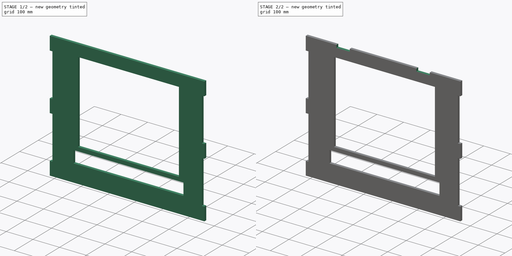
[diagram: build sequence overview — one tinted view per stage of 2, left to right]
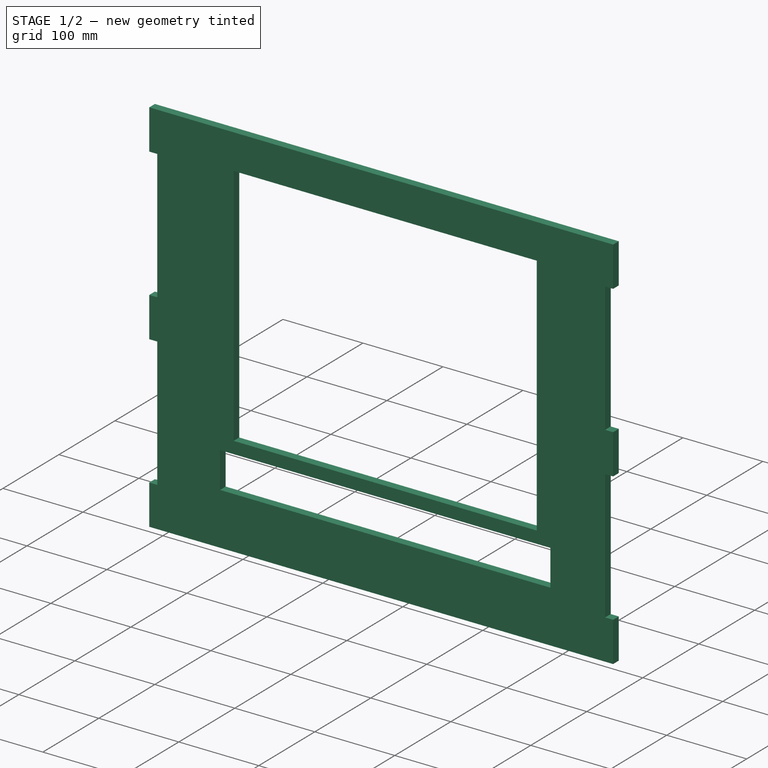
[diagram: stage 1 of 2 — iso view after this stage's code; geometry added in this stage tinted green]
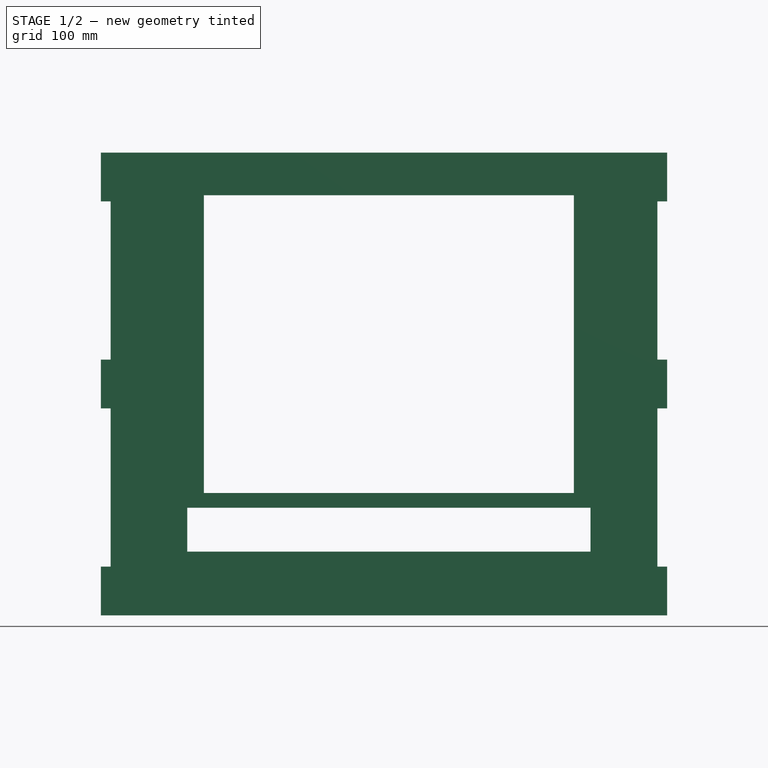
[diagram: stage 1 of 2 — front view after this stage's code; geometry added in this stage tinted green]
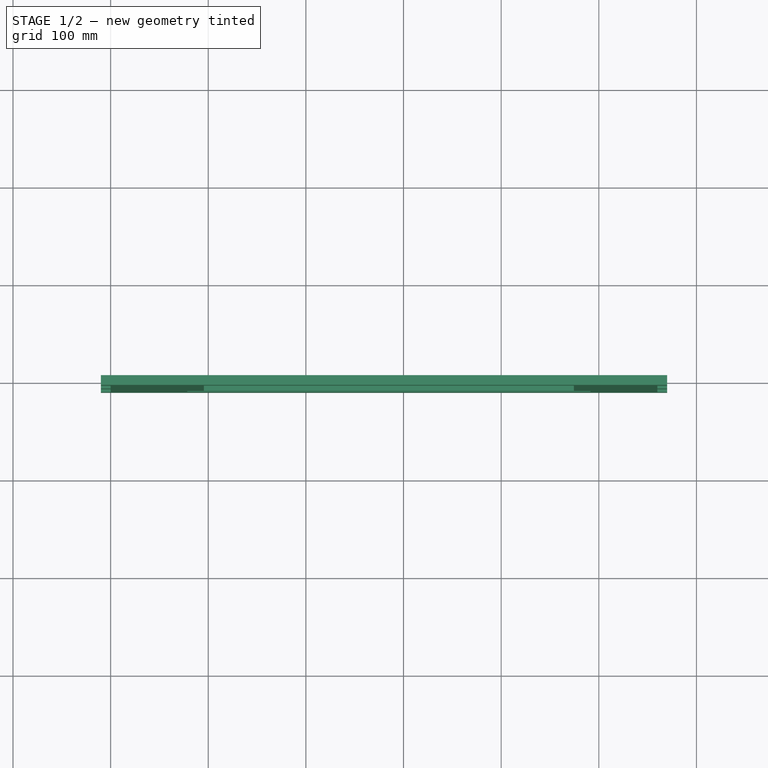
[diagram: stage 1 of 2 — top view after this stage's code; geometry added in this stage tinted green]
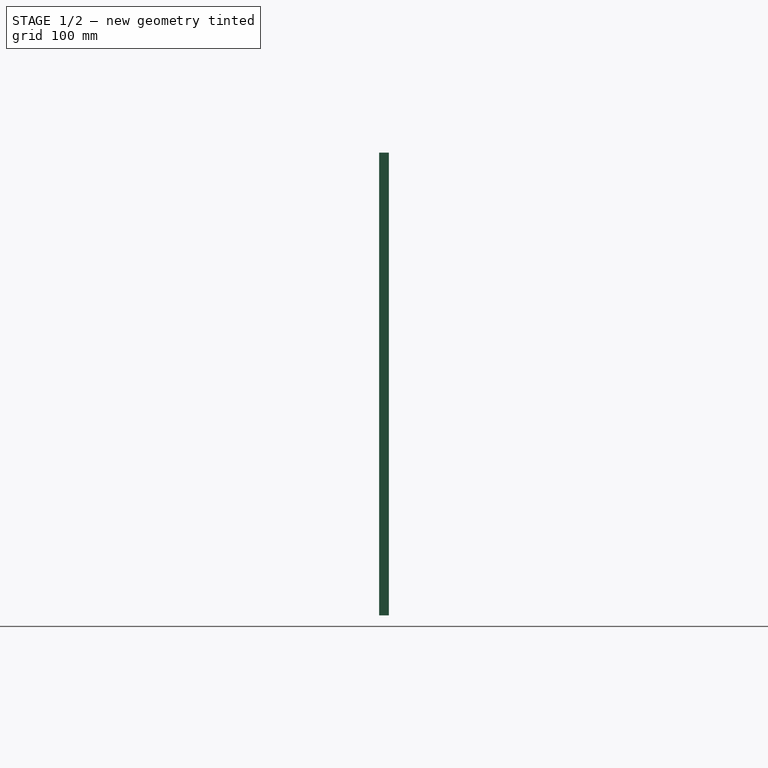
[diagram: stage 1 of 2 — right view after this stage's code; geometry added in this stage tinted green]
FCSTD DOCUMENT  (FreeCAD 0.16R)
Label: pannea_ecran
License: All rights reserved
LicenseURL: http://en.wikipedia.org/wiki/All_rights_reserved
objects: Sketcher::SketchObject×3, PartDesign::Pocket×2, PartDesign::Pad×1
note: 9 computed .brp shape members not serialized (recipe doc carries the construction recipe); baked Part::Feature solids carry a one-line shape summary decoded from their .brp

FEATURE [Sketcher::SketchObject] Sketch
  Placement = pos=(0,0,0) rot=(1,0,0;1.5708rad)
  sketch-geometry (24):
    g0: LineSegment StartX=0 StartY=0 StartZ=0 EndX=560 EndY=0 EndZ=0
    g1: LineSegment StartX=560 StartY=474 StartZ=0 EndX=0 EndY=474 EndZ=0
    g2: LineSegment StartX=560 StartY=474 StartZ=0 EndX=570 EndY=474 EndZ=0
    g3: LineSegment StartX=570 StartY=474 StartZ=0 EndX=570 EndY=424 EndZ=0
    g4: LineSegment StartX=570 StartY=424 StartZ=0 EndX=560 EndY=424 EndZ=0
    g5: LineSegment StartX=560 StartY=0 StartZ=0 EndX=570 EndY=0 EndZ=0
    g6: LineSegment StartX=570 StartY=0 StartZ=0 EndX=570 EndY=50 EndZ=0
    g7: LineSegment StartX=570 StartY=50 StartZ=0 EndX=560 EndY=50 EndZ=0
    g8: LineSegment StartX=0 StartY=0 StartZ=0 EndX=-10 EndY=0 EndZ=0
    g9: LineSegment StartX=-10 StartY=0 StartZ=0 EndX=-10 EndY=50 EndZ=0
    g10: LineSegment StartX=-10 StartY=50 StartZ=0 EndX=0 EndY=50 EndZ=0
    g11: LineSegment StartX=0 StartY=474 StartZ=0 EndX=-10 EndY=474 EndZ=0
    g12: LineSegment StartX=-10 StartY=474 StartZ=0 EndX=-10 EndY=424 EndZ=0
    g13: LineSegment StartX=-10 StartY=424 StartZ=0 EndX=0 EndY=424 EndZ=0
    g14: LineSegment StartX=-10 StartY=262 StartZ=0 EndX=0 EndY=262 EndZ=0
    g15: LineSegment StartX=0 StartY=212 StartZ=0 EndX=-10 EndY=212 EndZ=0
    g16: LineSegment StartX=-10 StartY=212 StartZ=0 EndX=-10 EndY=262 EndZ=0
    g17: LineSegment StartX=560 StartY=262 StartZ=0 EndX=570 EndY=262 EndZ=0
    g18: LineSegment StartX=570 StartY=262 StartZ=0 EndX=570 EndY=212 EndZ=0
    g19: LineSegment StartX=570 StartY=212 StartZ=0 EndX=560 EndY=212 EndZ=0
    g20: LineSegment StartX=0 StartY=424 StartZ=0 EndX=0 EndY=262 EndZ=0
    g21: LineSegment StartX=0 StartY=212 StartZ=0 EndX=0 EndY=50 EndZ=0
    g22: LineSegment StartX=560 StartY=424 StartZ=0 EndX=560 EndY=262 EndZ=0
    g23: LineSegment StartX=560 StartY=212 StartZ=0 EndX=560 EndY=50 EndZ=0
  constraints (72):
    c: Horizontal(g0)
    c: Horizontal(g1)
    c: Coincident(g0,g-1)
    c: Distance(g0) = 560
    c: DistanceY(g-1,g1) = 474
    c: Coincident(g2,g3)
    c: Coincident(g3,g4)
    c: Horizontal(g2)
    c: Horizontal(g4)
    c: Vertical(g3)
    c: Coincident(g2,g1)
    c: Coincident(g5,g6)
    c: Coincident(g6,g7)
    c: Horizontal(g5)
    c: Horizontal(g7)
    c: Vertical(g6)
    c: Coincident(g5,g0)
    c: Coincident(g8,g9)
    c: Coincident(g9,g10)
    c: Horizontal(g8)
    c: Horizontal(g10)
    c: Vertical(g9)
    c: Coincident(g8,g-1)
    c: Coincident(g11,g12)
    c: Coincident(g12,g13)
    c: Horizontal(g11)
    c: Horizontal(g13)
    c: Vertical(g12)
    c: Coincident(g11,g1)
    c: Coincident(g15,g16)
    c: Coincident(g16,g14)
    c: Horizontal(g14)
    c: Horizontal(g15)
    c: Vertical(g16)
    c: Coincident(g17,g18)
    c: Coincident(g18,g19)
    c: Horizontal(g17)
    c: Horizontal(g19)
    c: Vertical(g18)
    c: Equal(g12,g16)
    c: Equal(g16,g9)
    c: Equal(g9,g6)
    c: Equal(g6,g18)
    c: Equal(g18,g3)
    c: Equal(g2,g4)
    c: Equal(g4,g17)
    c: Equal(g17,g19)
    c: Equal(g19,g7)
    c: Equal(g7,g5)
    c: Equal(g5,g8)
    c: Equal(g8,g10)
    c: Equal(g10,g15)
    c: Equal(g15,g14)
    c: Equal(g14,g13)
    c: Equal(g13,g11)
    c: DistanceX(g2,g2) = 10
    c: DistanceY(g3,g3) = 50
    c: Coincident(g20,g13)
    c: Coincident(g20,g14)
    c: Vertical(g20)
    c: Coincident(g21,g15)
    c: Coincident(g21,g10)
    c: Vertical(g21)
    c: Coincident(g22,g4)
    c: Coincident(g22,g17)
    c: Vertical(g22)
    c: Coincident(g23,g19)
    c: Coincident(g23,g7)
    c: Vertical(g23)
    c: Equal(g20,g21)
    c: Equal(g21,g23)
    c: Equal(g23,g22)
FEATURE [PartDesign::Pad] Pad
  Length = 10
  Length2 = 100
  Placement = pos=(0,0,0) rot=(1,0,0;1.5708rad)
  Sketch = -> Sketch
  Type = 0
FEATURE [Sketcher::SketchObject] Sketch001
  ExternalGeometry = -> [Pad]
  Placement = pos=(0,-10,0) rot=(1,0,0;1.5708rad)
  Support = -> Pad [Face26]
  sketch-geometry (12):
    g0: LineSegment StartX=95.5 StartY=430.303 StartZ=0 EndX=474.5 EndY=430.303 EndZ=0
    g1: LineSegment StartX=474.5 StartY=430.303 StartZ=0 EndX=474.5 EndY=125.303 EndZ=0
    g2: LineSegment StartX=474.5 StartY=125.303 StartZ=0 EndX=95.5 EndY=125.303 EndZ=0
    g3: LineSegment StartX=95.5 StartY=125.303 StartZ=0 EndX=95.5 EndY=430.303 EndZ=0
    g4: LineSegment [constr] StartX=0 StartY=0 StartZ=0 EndX=95.5 EndY=430.303 EndZ=0
    g5: LineSegment [constr] StartX=474.5 StartY=430.303 StartZ=0 EndX=570 EndY=0 EndZ=0
    g6: LineSegment StartX=78.5 StartY=110.303 StartZ=0 EndX=491.5 EndY=110.303 EndZ=0
    g7: LineSegment StartX=491.5 StartY=110.303 StartZ=0 EndX=491.5 EndY=65.3025 EndZ=0
    g8: LineSegment StartX=491.5 StartY=65.3025 StartZ=0 EndX=78.5 EndY=65.3025 EndZ=0
    g9: LineSegment StartX=78.5 StartY=65.3025 StartZ=0 EndX=78.5 EndY=110.303 EndZ=0
    g10: LineSegment [constr] StartX=95.5 StartY=125.303 StartZ=0 EndX=78.5 EndY=110.303 EndZ=0
    g11: LineSegment [constr] StartX=474.5 StartY=125.303 StartZ=0 EndX=491.5 EndY=110.303 EndZ=0
  constraints (31):
    c: Coincident(g0,g1)
    c: Coincident(g1,g2)
    c: Coincident(g2,g3)
    c: Coincident(g3,g0)
    c: Horizontal(g0)
    c: Horizontal(g2)
    c: Vertical(g1)
    c: Vertical(g3)
    c: Distance(g3) = 305
    c: Distance(g2) = 379
    c: Coincident(g6,g7)
    c: Coincident(g7,g8)
    c: Coincident(g8,g9)
    c: Coincident(g9,g6)
    c: Horizontal(g6)
    c: Horizontal(g8)
    c: Vertical(g7)
    c: Vertical(g9)
    c: DistanceY(g6,g2) = 15
    c: Distance(g9) = 45
    c: Distance(g8) = 413
    c: Coincident(g10,g2)
    c: Coincident(g10,g6)
    c: Coincident(g11,g1)
    c: Coincident(g11,g6)
    c: Equal(g11,g10)
    c: Coincident(g0,g4)
    c: Coincident(g0,g5)
    c: Coincident(g4,g-1)
    c: Coincident(g5,g-3)
    c: Equal(g4,g5)
FEATURE [PartDesign::Pocket] Pocket
  Length = 5
  Placement = pos=(0,0,0) rot=(1,0,0;1.5708rad)
  Sketch = -> Sketch001
  Type = 1
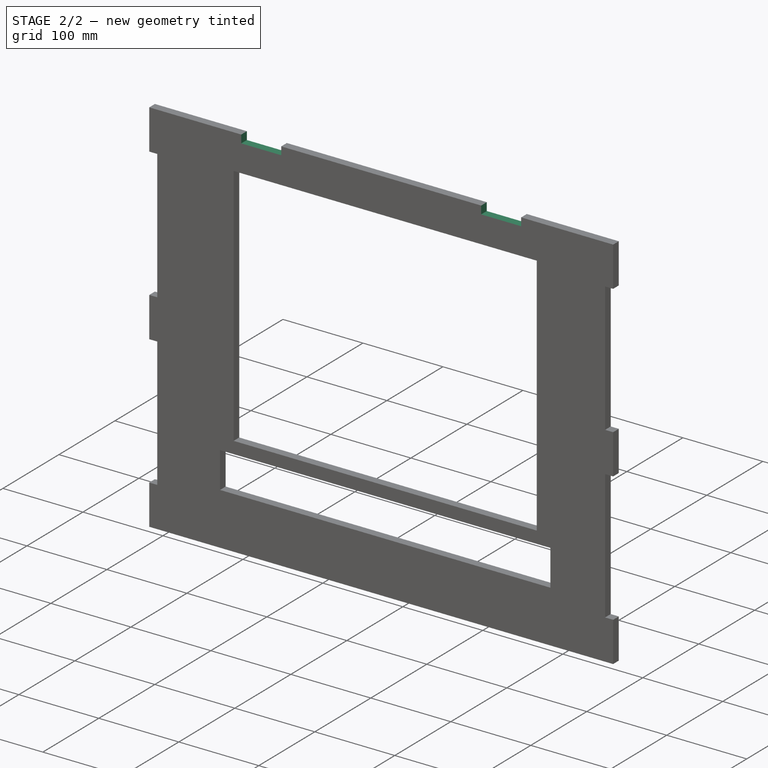
[diagram: stage 2 of 2 — iso view after this stage's code; geometry added in this stage tinted green]
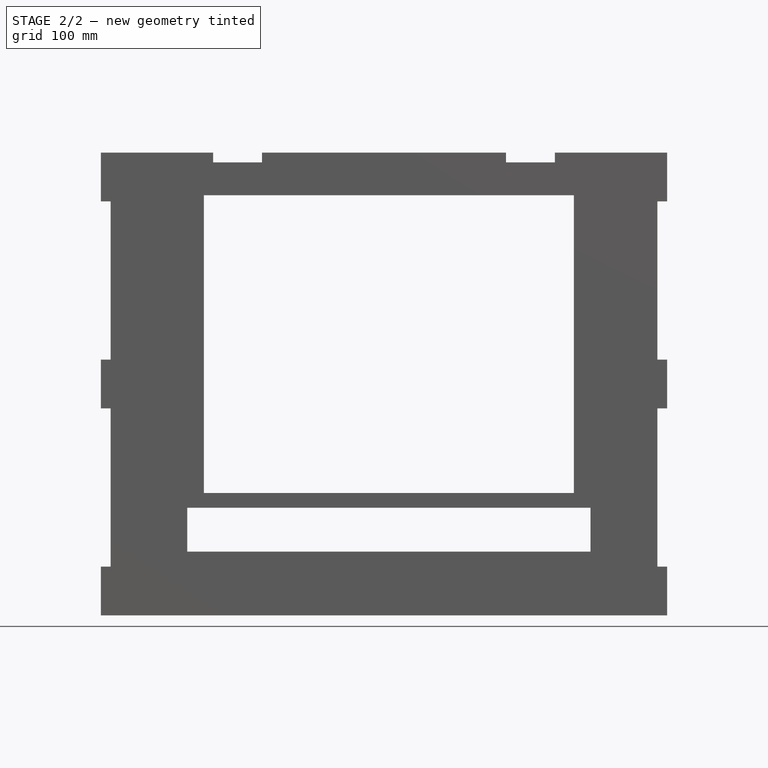
[diagram: stage 2 of 2 — front view after this stage's code; geometry added in this stage tinted green]
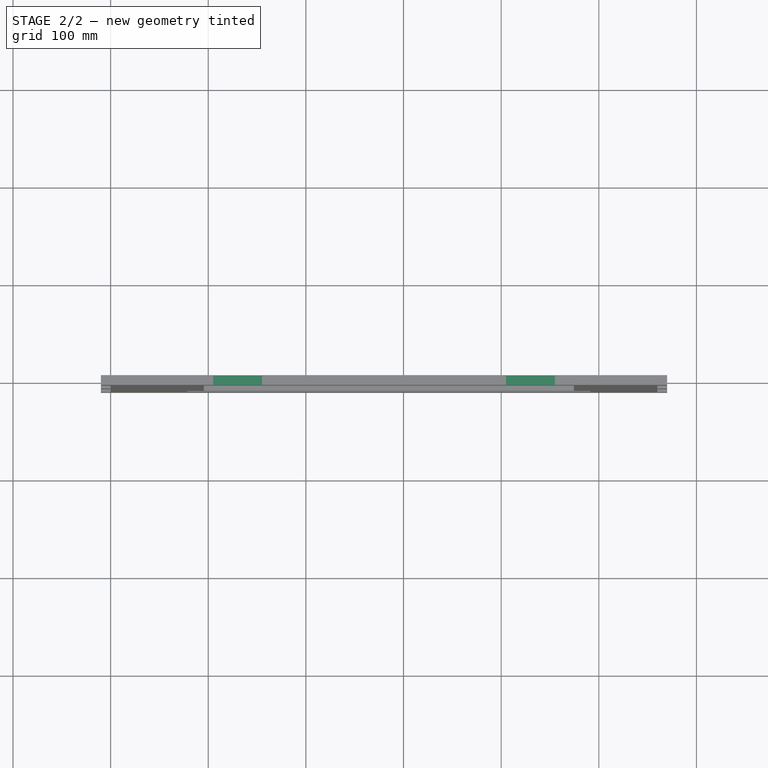
[diagram: stage 2 of 2 — top view after this stage's code; geometry added in this stage tinted green]
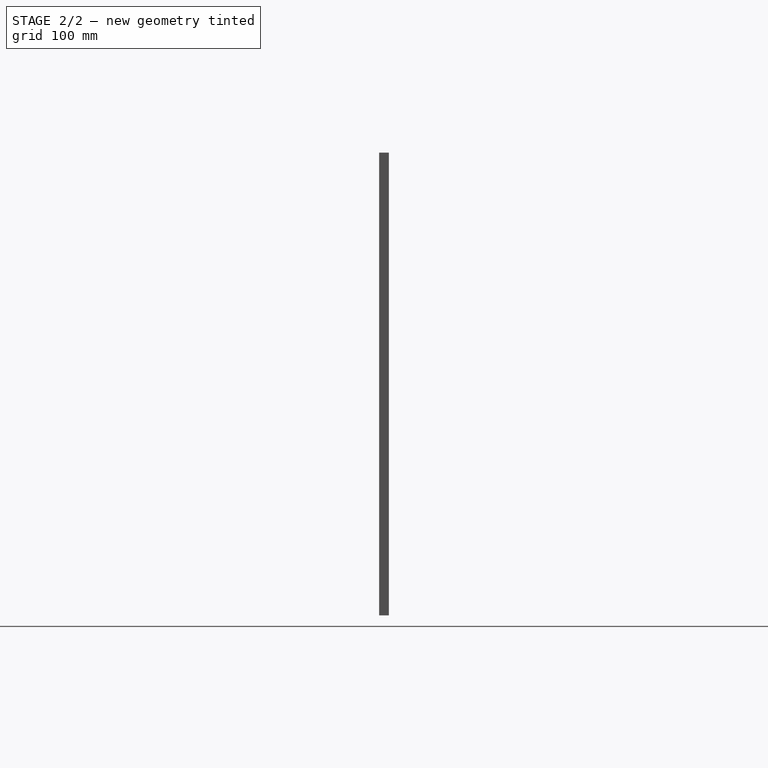
[diagram: stage 2 of 2 — right view after this stage's code; geometry added in this stage tinted green]
FEATURE [Sketcher::SketchObject] Sketch002
  ExternalGeometry = -> [Pocket]
  Placement = pos=(0,-10,0) rot=(1,0,0;1.5708rad)
  Support = -> Pocket [Face5]
  sketch-geometry (12):
    g0: LineSegment StartX=105 StartY=474 StartZ=0 EndX=155 EndY=474 EndZ=0
    g1: LineSegment StartX=155 StartY=474 StartZ=0 EndX=155 EndY=464 EndZ=0
    g2: LineSegment StartX=155 StartY=464 StartZ=0 EndX=105 EndY=464 EndZ=0
    g3: LineSegment StartX=105 StartY=464 StartZ=0 EndX=105 EndY=474 EndZ=0
    g4: LineSegment StartX=455 StartY=464 StartZ=0 EndX=405 EndY=464 EndZ=0
    g5: LineSegment StartX=405 StartY=464 StartZ=0 EndX=405 EndY=474 EndZ=0
    g6: LineSegment StartX=405 StartY=474 StartZ=0 EndX=455 EndY=474 EndZ=0
    g7: LineSegment StartX=455 StartY=474 StartZ=0 EndX=455 EndY=464 EndZ=0
    g8: GeomPoint [constr] X=280 Y=474 Z=0
    g9: LineSegment [constr] StartX=155 StartY=474 StartZ=0 EndX=405 EndY=474 EndZ=0
    g10: LineSegment [constr] StartX=155 StartY=474 StartZ=0 EndX=405 EndY=474 EndZ=0
    g11: GeomPoint [constr] X=280 Y=474 Z=0
  constraints (32):
    c: Coincident(g0,g1)
    c: Coincident(g1,g2)
    c: Coincident(g2,g3)
    c: Coincident(g3,g0)
    c: Horizontal(g0)
    c: Horizontal(g2)
    c: Vertical(g1)
    c: Vertical(g3)
    c: PointOnObject(g0,g-3)
    c: Coincident(g4,g5)
    c: Coincident(g5,g6)
    c: Coincident(g6,g7)
    c: Coincident(g7,g4)
    c: Horizontal(g4)
    c: Horizontal(g6)
    c: Vertical(g5)
    c: Vertical(g7)
    c: PointOnObject(g5,g-3)
    c: Equal(g3,g1)
    c: Equal(g1,g5)
    c: Equal(g5,g7)
    c: Equal(g2,g4)
    c: Distance(g3) = 10
    c: Distance(g2) = 50
    c: Symmetric(g-3,g-3,g8)
    c: Coincident(g9,g0)
    c: Symmetric(g10,g10,g11)
    c: Coincident(g10,g0)
    c: Coincident(g10,g9)
    c: Coincident(g9,g5)
    c: Coincident(g11,g8)
    c: DistanceX(g0,g5) = 250
FEATURE [PartDesign::Pocket] Pocket001
  Length = 5
  Placement = pos=(0,0,0) rot=(1,0,0;1.5708rad)
  Sketch = -> Sketch002
  Type = 1
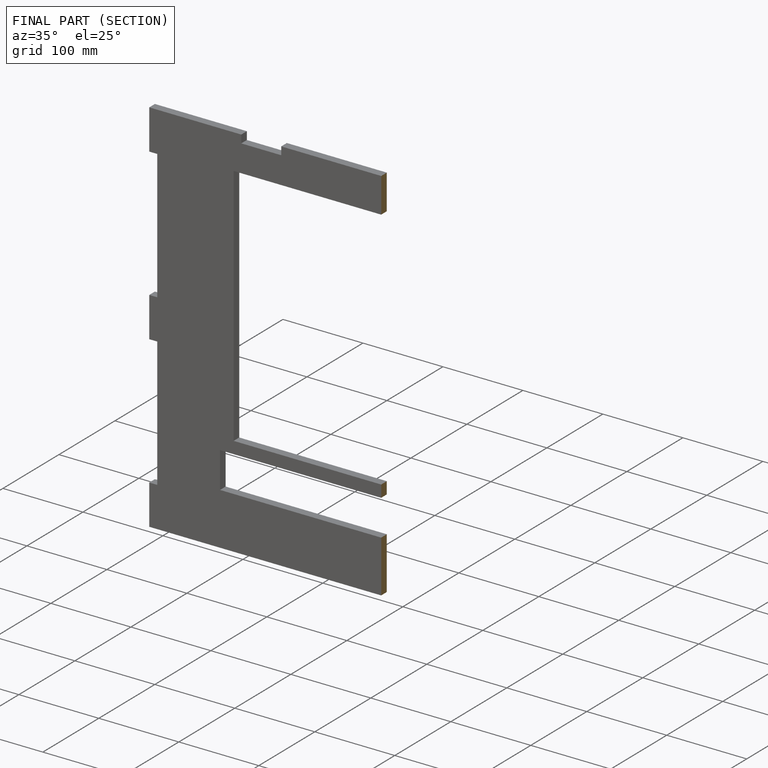
[diagram: finished part — half-section view (interior)]
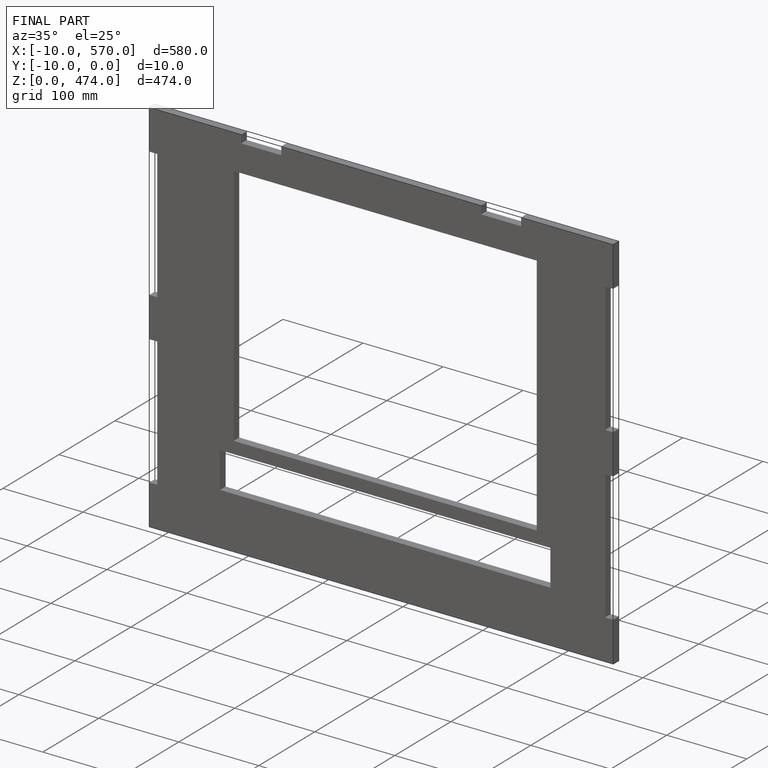
[diagram: finished part — iso view with bounding-box wireframe]
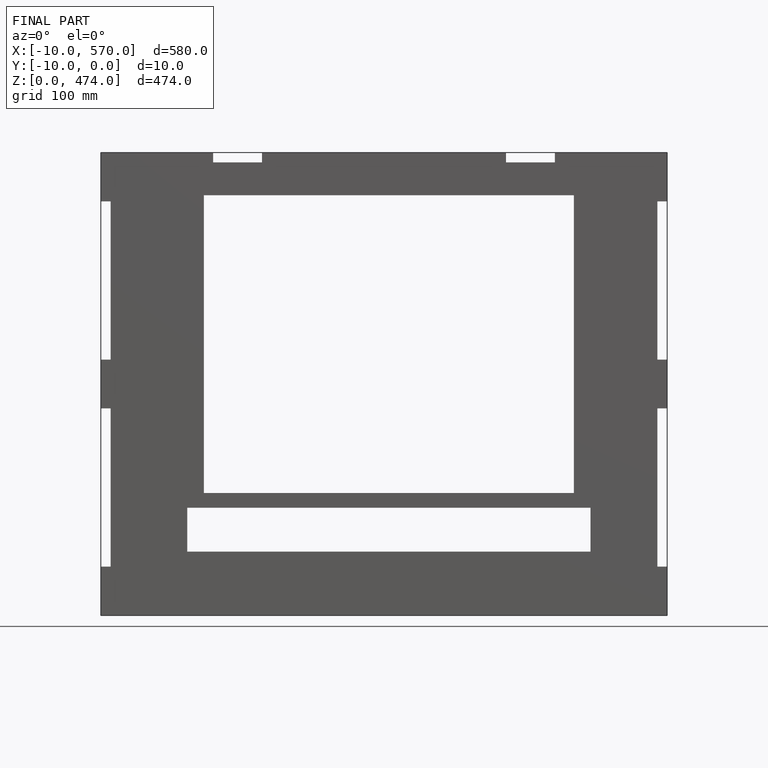
[diagram: finished part — front view with bounding-box wireframe]
